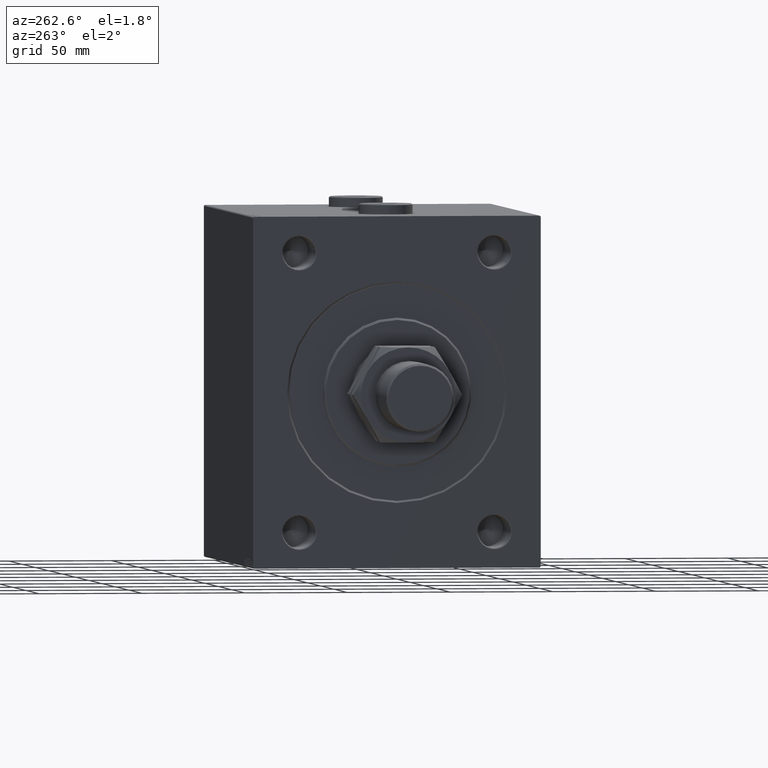
[diagram: clean part render]
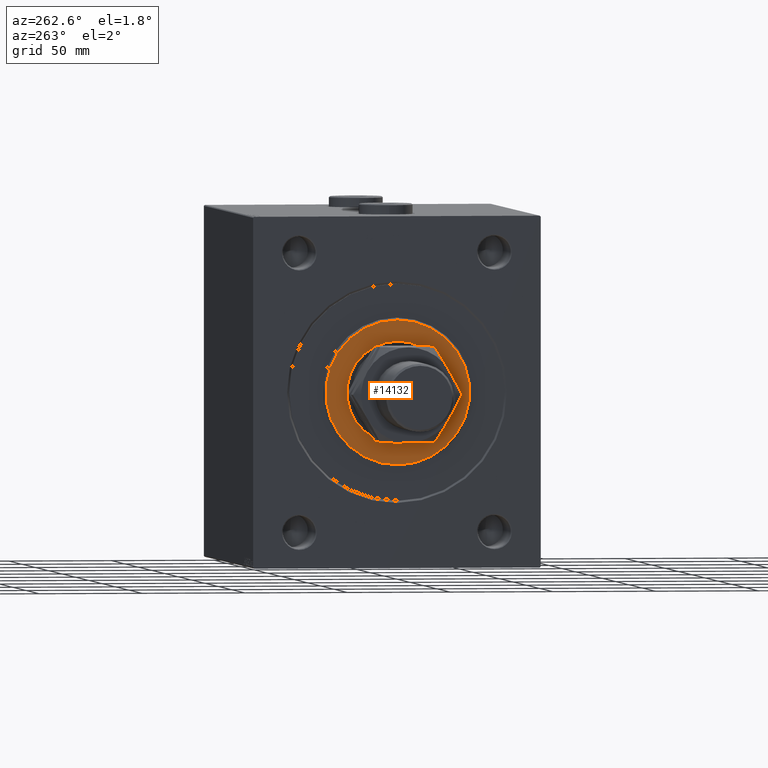
[diagram: same view with one face highlighted and labeled with its STEP entity id]
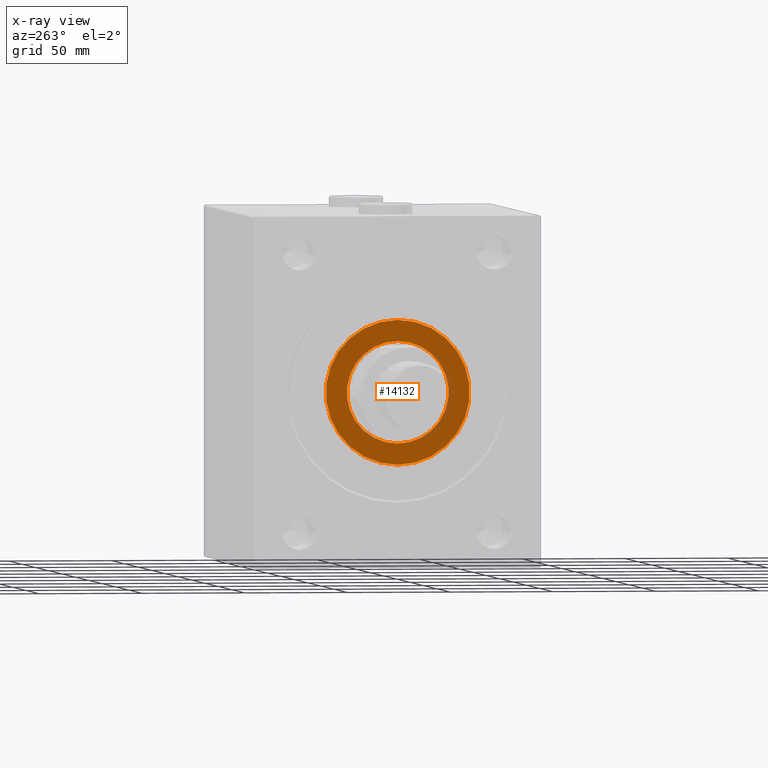
[diagram: x-ray of the same camera — body ghosted, the highlighted face saturated]
A machine part, auxiliary view. The second image highlights one B-rep face of the part: STEP entity #14132.
The next image is the same camera in x-ray: the body ghosted, the highlighted face saturated — about 8% of this face is hidden behind the body in this view.
In plain terms, the highlighted planar face has unit normal (-1, 0, 0).
Its self-contained STEP definition (entity closure, byte-faithful):
#1532 = DIRECTION ( 'NONE',  ( 0.000000000000000000, 0.000000000000000000, -1.000000000000000000 ) ) ;
#1614 = VERTEX_POINT ( 'NONE', #7999 ) ;
#1719 = DIRECTION ( 'NONE',  ( 1.000000000000000000, 0.000000000000000000, 0.000000000000000000 ) ) ;
#1864 = EDGE_CURVE ( 'NONE', #26583, #1614, #33354, .T. ) ;
#1944 = CARTESIAN_POINT ( 'NONE',  ( 3.000000000000000000, 0.000000000000000000, 0.000000000000000000 ) ) ;
#1983 = AXIS2_PLACEMENT_3D ( 'NONE', #1944, #1719, #13201 ) ;
#5754 = DIRECTION ( 'NONE',  ( 1.000000000000000000, -0.000000000000000000, 0.000000000000000000 ) ) ;
#7999 = CARTESIAN_POINT ( 'NONE',  ( 3.000000000000000000, 3.031000827889699650E-15, 24.75000000000000355 ) ) ;
#8842 = EDGE_CURVE ( 'NONE', #32511, #13744, #42772, .T. ) ;
#9115 = AXIS2_PLACEMENT_3D ( 'NONE', #12053, #34599, #1532 ) ;
#10215 = AXIS2_PLACEMENT_3D ( 'NONE', #24265, #21131, #13702 ) ;
#11321 = CARTESIAN_POINT ( 'NONE',  ( 3.000000000000000000, 0.000000000000000000, -24.75000000000000355 ) ) ;
#12053 = CARTESIAN_POINT ( 'NONE',  ( 3.000000000000000000, 0.000000000000000000, 0.000000000000000000 ) ) ;
#12525 = PLANE ( 'NONE',  #9115 ) ;
#12840 = EDGE_LOOP ( 'NONE', ( #32208, #17199 ) ) ;
#13201 = DIRECTION ( 'NONE',  ( 0.000000000000000000, 0.000000000000000000, -1.000000000000000000 ) ) ;
#13304 = CIRCLE ( 'NONE', #10215, 35.00000000000002842 ) ;
#13702 = DIRECTION ( 'NONE',  ( 0.000000000000000000, 0.000000000000000000, -1.000000000000000000 ) ) ;
#13744 = VERTEX_POINT ( 'NONE', #15240 ) ;
#14132 = ADVANCED_FACE ( 'NONE', ( #37962, #34838 ), #12525, .T. ) ;
#15240 = CARTESIAN_POINT ( 'NONE',  ( 3.000000000000000000, 0.000000000000000000, 35.00000000000002842 ) ) ;
#17199 = ORIENTED_EDGE ( 'NONE', *, *, #46711, .F. ) ;
#19413 = DIRECTION ( 'NONE',  ( 0.000000000000000000, 0.000000000000000000, -1.000000000000000000 ) ) ;
#21131 = DIRECTION ( 'NONE',  ( 1.000000000000000000, -0.000000000000000000, 0.000000000000000000 ) ) ;
#21431 = AXIS2_PLACEMENT_3D ( 'NONE', #33166, #46901, #44905 ) ;
#22082 = AXIS2_PLACEMENT_3D ( 'NONE', #37661, #5754, #19413 ) ;
#24265 = CARTESIAN_POINT ( 'NONE',  ( 3.000000000000000000, 0.000000000000000000, 0.000000000000000000 ) ) ;
#26583 = VERTEX_POINT ( 'NONE', #11321 ) ;
#26817 = EDGE_CURVE ( 'NONE', #13744, #32511, #13304, .T. ) ;
#28454 = CARTESIAN_POINT ( 'NONE',  ( 3.000000000000000000, 4.347496136973104859E-15, -35.00000000000002842 ) ) ;
#30647 = ORIENTED_EDGE ( 'NONE', *, *, #8842, .T. ) ;
#32208 = ORIENTED_EDGE ( 'NONE', *, *, #1864, .F. ) ;
#32511 = VERTEX_POINT ( 'NONE', #28454 ) ;
#33166 = CARTESIAN_POINT ( 'NONE',  ( 3.000000000000000000, 0.000000000000000000, 0.000000000000000000 ) ) ;
#33354 = CIRCLE ( 'NONE', #1983, 24.75000000000000355 ) ;
#34599 = DIRECTION ( 'NONE',  ( 1.000000000000000000, -0.000000000000000000, 0.000000000000000000 ) ) ;
#34838 = FACE_BOUND ( 'NONE', #12840, .T. ) ;
#35821 = EDGE_LOOP ( 'NONE', ( #38608, #30647 ) ) ;
#37661 = CARTESIAN_POINT ( 'NONE',  ( 3.000000000000000000, 0.000000000000000000, 0.000000000000000000 ) ) ;
#37962 = FACE_OUTER_BOUND ( 'NONE', #35821, .T. ) ;
#38608 = ORIENTED_EDGE ( 'NONE', *, *, #26817, .T. ) ;
#42772 = CIRCLE ( 'NONE', #22082, 35.00000000000002842 ) ;
#44905 = DIRECTION ( 'NONE',  ( 0.000000000000000000, 0.000000000000000000, -1.000000000000000000 ) ) ;
#45947 = CIRCLE ( 'NONE', #21431, 24.75000000000000355 ) ;
#46711 = EDGE_CURVE ( 'NONE', #1614, #26583, #45947, .T. ) ;
#46901 = DIRECTION ( 'NONE',  ( 1.000000000000000000, 0.000000000000000000, 0.000000000000000000 ) ) ;